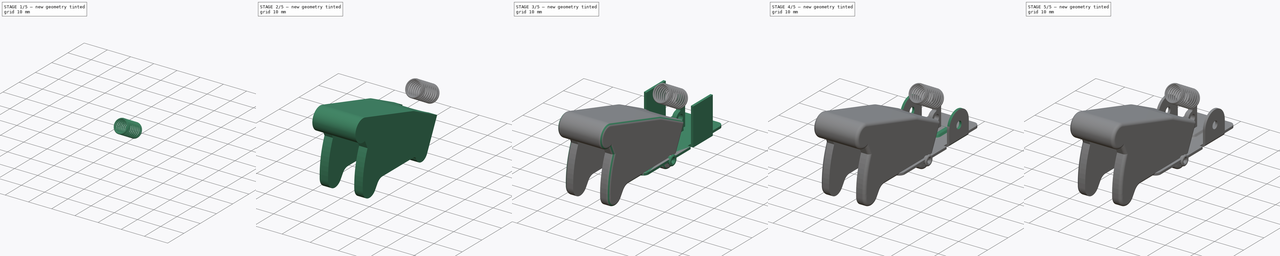
[diagram: build sequence overview — one tinted view per stage of 5, left to right]
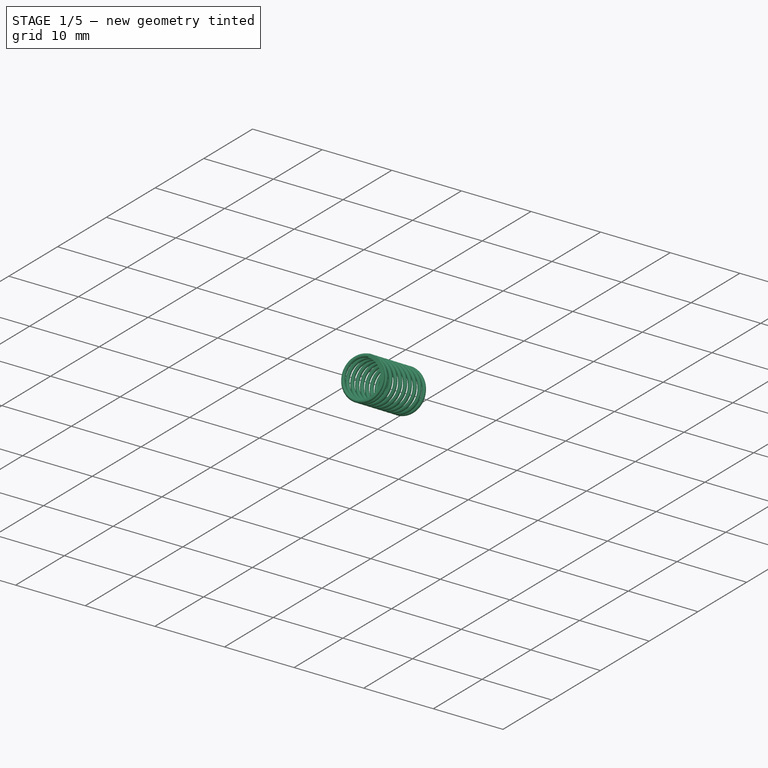
[diagram: stage 1 of 5 — iso view after this stage's code; geometry added in this stage tinted green]
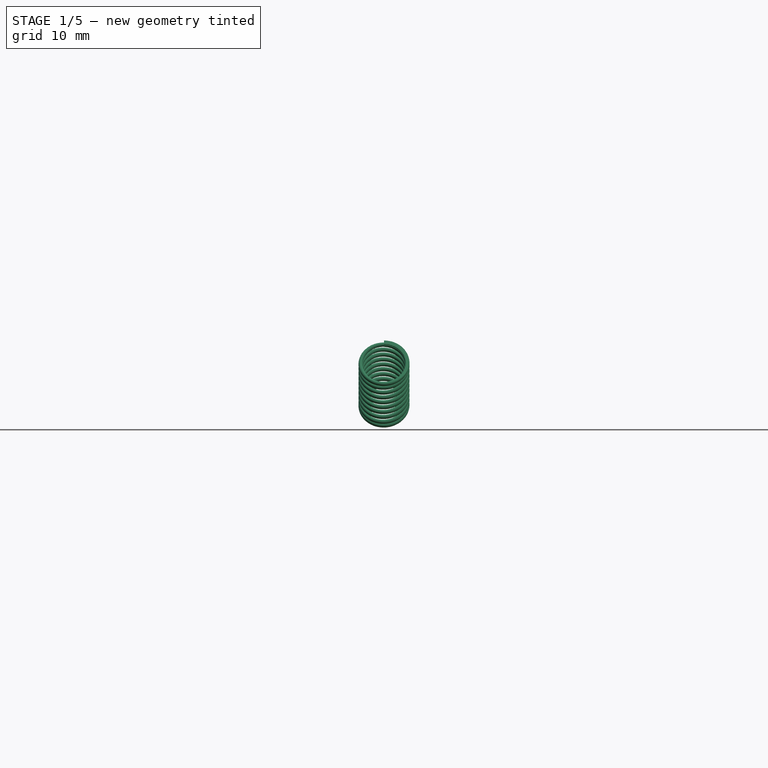
[diagram: stage 1 of 5 — front view after this stage's code; geometry added in this stage tinted green]
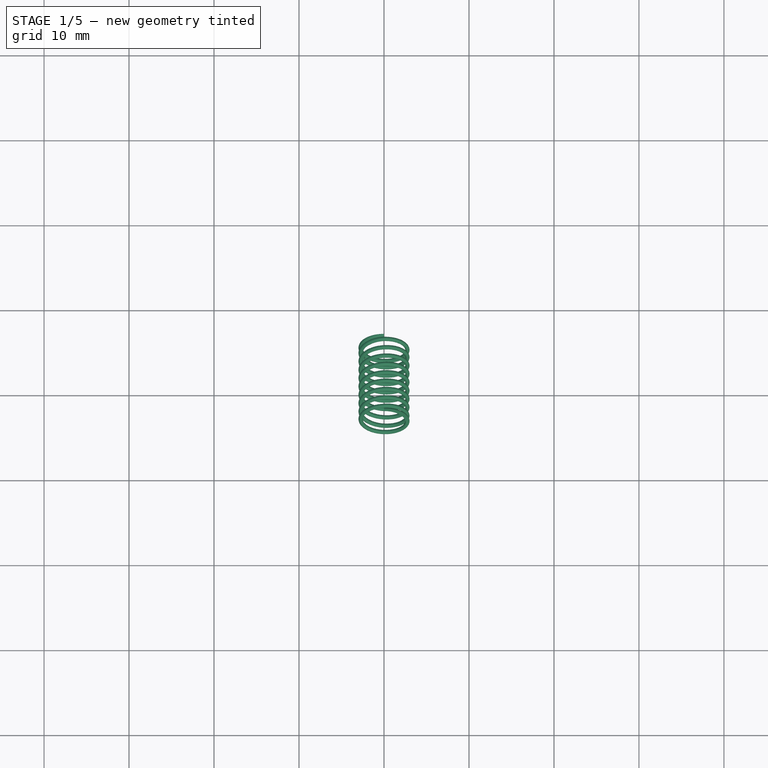
[diagram: stage 1 of 5 — top view after this stage's code; geometry added in this stage tinted green]
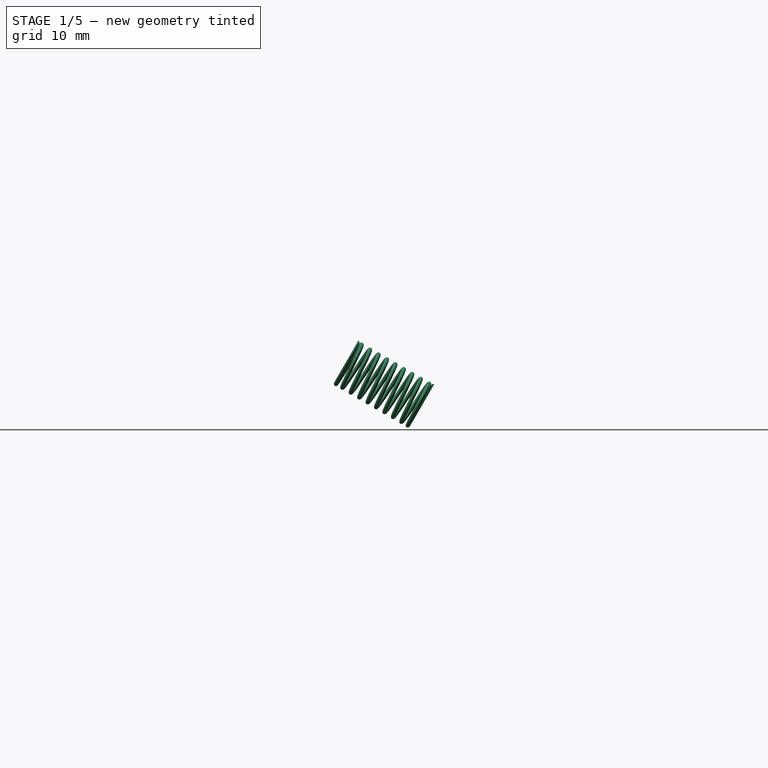
[diagram: stage 1 of 5 — right view after this stage's code; geometry added in this stage tinted green]
FCSTD DOCUMENT  (FreeCAD 0.20R29177 +426 (Git))
Label: Guard
License: All rights reserved
LicenseURL: http://en.wikipedia.org/wiki/All_rights_reserved
objects: Sketcher::SketchObject×19, PartDesign::Fillet×9, PartDesign::Body×9, PartDesign::Pad×7, PartDesign::Pocket×7, PartDesign::AdditiveHelix×3, PartDesign::Draft×2, PartDesign::Revolution×2, PartDesign::Chamfer×1, Part::MultiFuse×1
note: 91 computed .brp shape members not serialized (recipe doc carries the construction recipe); baked Part::Feature solids carry a one-line shape summary decoded from their .brp

FEATURE [PartDesign::Body] Body005
  Group = -> [Sketch013,Pad005,Sketch014,Pad006,Chamfer]
  Origin = -> Origin005
  Placement = pos=(2e-15,6.77276,16.05) rot=(0,0.965926,-0.258819;3.14159rad)
  Tip = -> Chamfer
FEATURE [Sketcher::SketchObject] Sketch015
  FullyConstrained = true
  MapMode = 5
  Placement = pos=(0,0,0) rot=(0.57735,0.57735,0.57735;2.0944rad)
  Support = -> [YZ_Plane006]
  sketch-geometry (1):
    g0: Circle CenterX=2.75 CenterY=0 CenterZ=0 NormalX=0 NormalY=0 NormalZ=1 AngleXU=0 Radius=0.25
  constraints (3):
    c: PointOnObject(g0,g-1)
    c: Diameter(g0) = 0.5
    c: DistanceX(g-1,g0) = 2.75
FEATURE [PartDesign::AdditiveHelix] AdditiveHelix
  Angle = 0
  Axis = (-2e-16,3e-16,1)
  Base = (0,0,0)
  Growth = 0
  HasBeenEdited = true
  Height = 0.55
  LeftHanded = false
  Mode = 2
  Outside = false
  Pitch = 0.55
  Placement = pos=(0,0,0) rot=(0.57735,0.57735,0.57735;2.0944rad)
  Profile = -> Sketch015
  ReferenceAxis = -> Sketch015 [V_Axis]
  Turns = 1
FEATURE [Sketcher::SketchObject] Sketch016
  FullyConstrained = true
  MapMode = 5
  Placement = pos=(0,0,0) rot=(0.57735,0.57735,0.57735;2.0944rad)
  Support = -> [YZ_Plane007]
  sketch-geometry (1):
    g0: Circle CenterX=2.75 CenterY=0 CenterZ=0 NormalX=0 NormalY=0 NormalZ=1 AngleXU=0 Radius=0.25
  constraints (3):
    c: PointOnObject(g0,g-1)
    c: Diameter(g0) = 0.5
    c: DistanceX(g-1,g0) = 2.75
FEATURE [PartDesign::AdditiveHelix] AdditiveHelix001
  Angle = 0
  Axis = (-2e-16,3e-16,1)
  Base = (0,0,0)
  Growth = 0
  HasBeenEdited = true
  Height = 9.175
  LeftHanded = false
  Mode = 2
  Outside = false
  Pitch = 1.14688
  Placement = pos=(0,0,0) rot=(0.57735,0.57735,0.57735;2.0944rad)
  Profile = -> Sketch016
  ReferenceAxis = -> Sketch016 [V_Axis]
  Turns = 8
FEATURE [PartDesign::Body] Body007
  Group = -> [Sketch016,AdditiveHelix001]
  Origin = -> Origin007
  Placement = pos=(0,0,0.55) rot=(0,0,1;0rad)
  Tip = -> AdditiveHelix001
FEATURE [Sketcher::SketchObject] Sketch017
  FullyConstrained = true
  MapMode = 5
  Placement = pos=(0,0,0) rot=(0.57735,0.57735,0.57735;2.0944rad)
  Support = -> [YZ_Plane008]
  sketch-geometry (1):
    g0: Circle CenterX=2.75 CenterY=0 CenterZ=0 NormalX=0 NormalY=0 NormalZ=1 AngleXU=0 Radius=0.25
  constraints (3):
    c: PointOnObject(g0,g-1)
    c: Diameter(g0) = 0.5
    c: DistanceX(g-1,g0) = 2.75
FEATURE [PartDesign::AdditiveHelix] AdditiveHelix002
  Angle = 0
  Axis = (-2e-16,3e-16,1)
  Base = (0,0,0)
  Growth = 0
  HasBeenEdited = true
  Height = 0.55
  LeftHanded = false
  Mode = 2
  Outside = false
  Pitch = 0.55
  Placement = pos=(0,0,0) rot=(0.57735,0.57735,0.57735;2.0944rad)
  Profile = -> Sketch017
  ReferenceAxis = -> Sketch017 [V_Axis]
  Turns = 1
FEATURE [Sketcher::SketchObject] Sketch018
  AttachmentOffset = pos=(0,0,0.55) rot=(0,0,1;0rad)
  FullyConstrained = false
  MapMode = 5
  Placement = pos=(0,0,0.55) rot=(0,0,1;0rad)
  Support = -> [XY_Plane008]
  sketch-geometry (1):
    g0: Circle CenterX=0 CenterY=0 CenterZ=0 NormalX=0 NormalY=0 NormalZ=1 AngleXU=0 Radius=3.83666
  constraints (1):
    c: Coincident(g0,g-1)
FEATURE [PartDesign::Pocket] Pocket005
  BaseFeature = -> AdditiveHelix002
  Direction = (0,0,-1)
  Length = 5
  Length2 = 5
  Placement = pos=(0,0,0) rot=(0.57735,0.57735,0.57735;2.0944rad)
  Profile = -> Sketch018
  ReferenceAxis = -> Sketch018 [N_Axis]
  Reversed = true
  Type = 0
FEATURE [PartDesign::Body] Body008
  Group = -> [Sketch017,AdditiveHelix002,Sketch018,Pocket005]
  Origin = -> Origin008
  Placement = pos=(0,0,9.75) rot=(0,0,1;0rad)
  Tip = -> Pocket005
FEATURE [Sketcher::SketchObject] Sketch019
  FullyConstrained = false
  MapMode = 5
  Support = -> [XY_Plane006]
  sketch-geometry (1):
    g0: Circle CenterX=0 CenterY=0 CenterZ=0 NormalX=0 NormalY=0 NormalZ=1 AngleXU=0 Radius=3.82613
  constraints (1):
    c: Coincident(g0,g-1)
FEATURE [PartDesign::Pocket] Pocket006
  BaseFeature = -> AdditiveHelix
  Direction = (0,0,-1)
  Length = 5
  Length2 = 5
  Placement = pos=(0,0,0) rot=(0.57735,0.57735,0.57735;2.0944rad)
  Profile = -> Sketch019
  ReferenceAxis = -> Sketch019 [N_Axis]
  Type = 0
FEATURE [PartDesign::Body] Body006
  Group = -> [Sketch015,AdditiveHelix,Sketch019,Pocket006]
  Origin = -> Origin006
  Tip = -> Pocket006
FEATURE [Part::MultiFuse] Fusion
  Placement = pos=(1.8e-15,15.6928,10.9) rot=(1,0,0;1.0472rad)
  Shapes = -> [Body006,Body007,Body008]
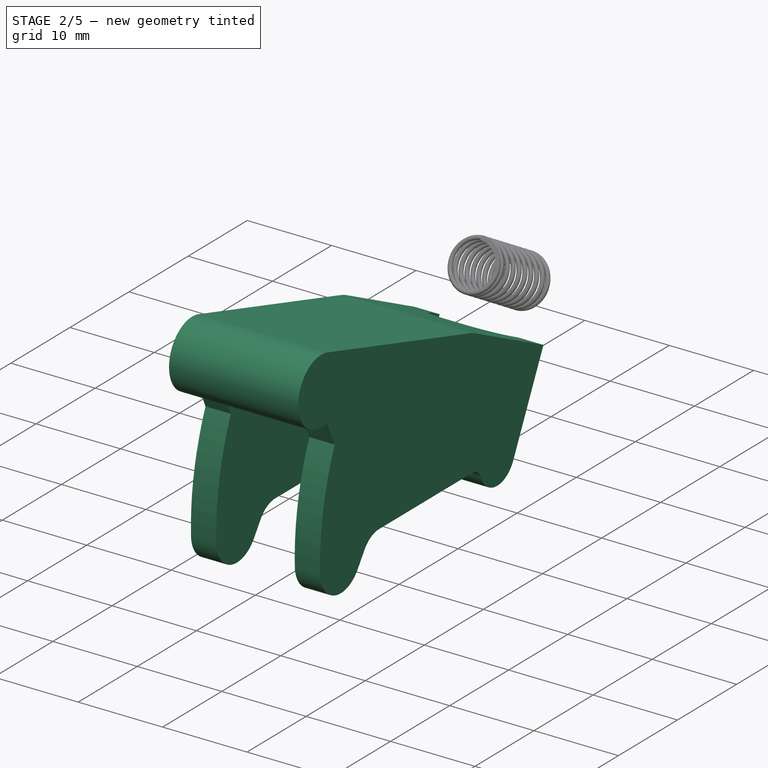
[diagram: stage 2 of 5 — iso view after this stage's code; geometry added in this stage tinted green]
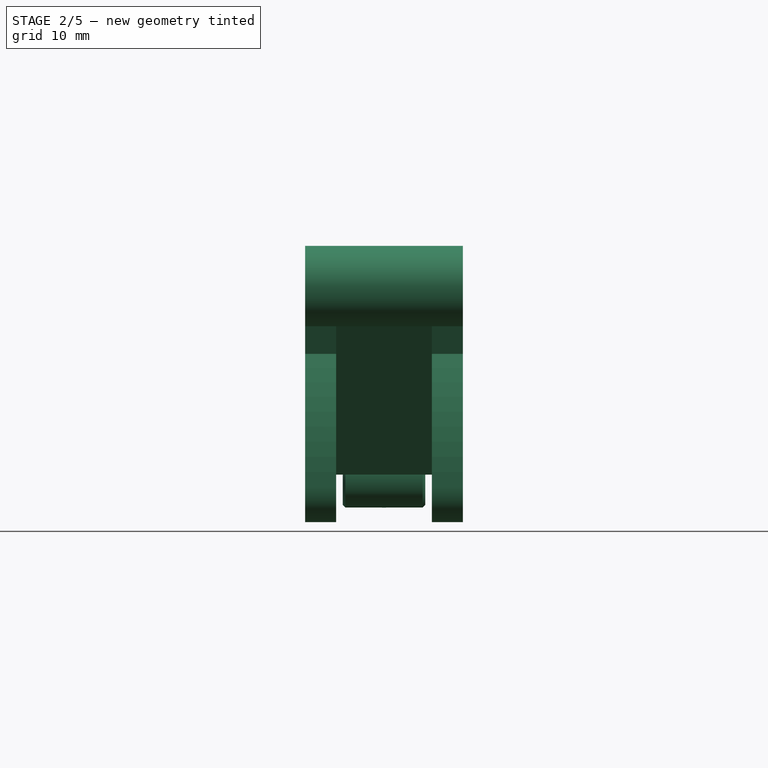
[diagram: stage 2 of 5 — front view after this stage's code; geometry added in this stage tinted green]
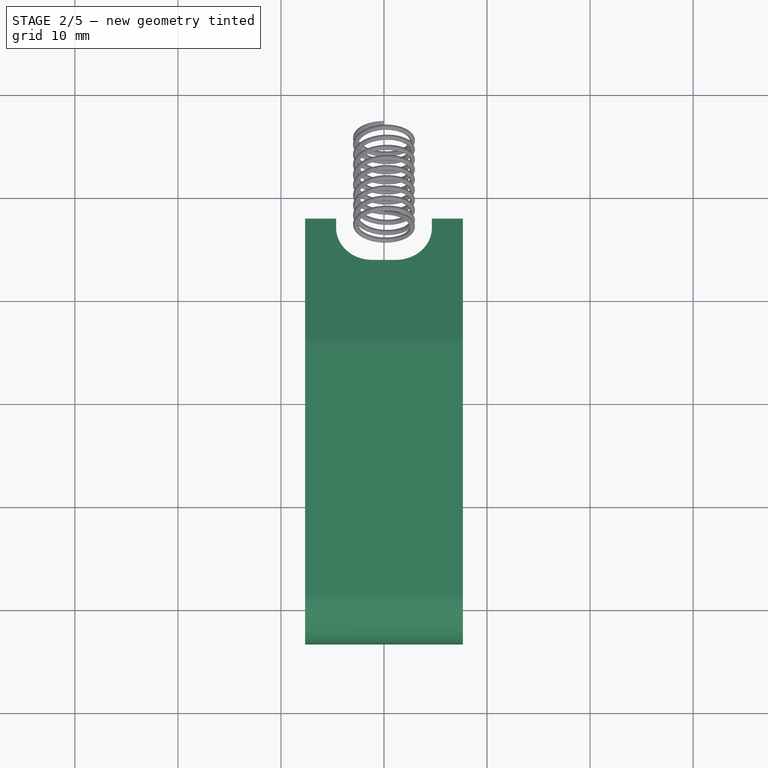
[diagram: stage 2 of 5 — top view after this stage's code; geometry added in this stage tinted green]
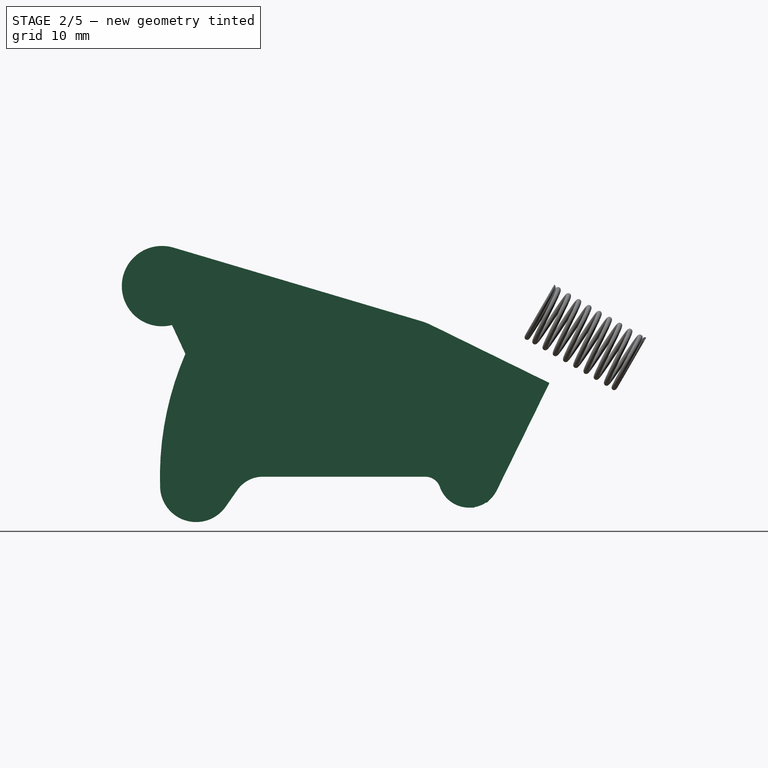
[diagram: stage 2 of 5 — right view after this stage's code; geometry added in this stage tinted green]
FEATURE [PartDesign::Body] Body002
  Group = -> [Sketch008,Revolution]
  Origin = -> Origin002
  Placement = pos=(0,15.2,5.2) rot=(0,0,1;0rad)
  Tip = -> Revolution
FEATURE [Sketcher::SketchObject] Sketch009
  FullyConstrained = true
  MapMode = 5
  Placement = pos=(0,0,0) rot=(0.57735,0.57735,0.57735;2.0944rad)
  Support = -> [YZ_Plane003]
  sketch-geometry (16):
    g0: ArcOfCircle CenterX=0 CenterY=0 CenterZ=0 NormalX=0 NormalY=0 NormalZ=1 AngleXU=0 Radius=3 StartAngle=3.48143 EndAngle=5.82755
    g1: ArcOfCircle CenterX=0 CenterY=0 CenterZ=0 NormalX=0 NormalY=0 NormalZ=1 AngleXU=0 Radius=30 StartAngle=2.73288 EndAngle=3.17556
    g2: LineSegment StartX=2.69395 StartY=-1.32009 StartZ=0 EndX=7.8 EndY=9.1 EndZ=0
    g3: LineSegment StartX=7.8 StartY=9.1 StartZ=0 EndX=-3.7 EndY=14.7352 EndZ=0
    g4: LineSegment StartX=-4.63315 StartY=15.0994 StartZ=0 EndX=-28.6904 EndY=22.2388 EndZ=0
    g5: ArcOfCircle CenterX=-29.8 CenterY=18.5 CenterZ=0 NormalX=0 NormalY=0 NormalZ=1 AngleXU=0 Radius=3.9 StartAngle=1.28231 EndAngle=4.96401
    g6: LineSegment StartX=-4.24264 StartY=0 StartZ=0 EndX=-20.0201 EndY=0 EndZ=0
    g7: ArcOfCircle CenterX=-26.4847 CenterY=-0.9 CenterZ=0 NormalX=0 NormalY=0 NormalZ=1 AngleXU=0 Radius=3.5 StartAngle=3.17556 EndAngle=5.67232
    g8: LineSegment StartX=-23.6177 StartY=-2.90752 StartZ=0 EndX=-22.4776 EndY=-1.27927 EndZ=0
    g9: LineSegment StartX=-27.529 StartY=11.9228 StartZ=0 EndX=-28.829 EndY=14.7228 EndZ=0
    g10: LineSegment StartX=-26.4847 StartY=-0.9 StartZ=0 EndX=-26.4847 EndY=-4.4 EndZ=0
    g11: ArcOfCircle CenterX=-20.0201 CenterY=-3 CenterZ=0 NormalX=0 NormalY=0 NormalZ=1 AngleXU=0 Radius=3 StartAngle=1.5708 EndAngle=2.53073
    g12: ArcOfCircle CenterX=-4.24264 CenterY=-1.5 CenterZ=0 NormalX=0 NormalY=0 NormalZ=1 AngleXU=0 Radius=1.5 StartAngle=0.339837 EndAngle=1.5708
    g13: ArcOfCircle CenterX=-6.34018 CenterY=9.34733 CenterZ=0 NormalX=0 NormalY=0 NormalZ=1 AngleXU=0 Radius=6 StartAngle=1.11516 EndAngle=1.28231
    g14: LineSegment StartX=-29.8 StartY=18.5 StartZ=0 EndX=-29.8 EndY=22.4 EndZ=0
    g15: LineSegment StartX=-29.8 StartY=18.5 StartZ=0 EndX=-33.7 EndY=18.5 EndZ=0
  constraints (43):
    c: Coincident(g0,g-1)
    c: Coincident(g1,g0)
    c: Coincident(g2,g3)
    c: Tangent(g5,g4) = -1.5708
    c: Horizontal(g6)
    c: Tangent(g1,g7) = -1.5708
    c: Tangent(g7,g8) = -1.5708
    c: Tangent(g0,g2) = -1.5708
    c: Coincident(g5,g9)
    c: Coincident(g1,g9)
    c: Coincident(g10,g7)
    c: PointOnObject(g10,g7)
    c: Vertical(g10)
    c: DistanceY(g10,g0) = 4.4
    c: Tangent(g6,g11) = -1.5708
    c: Tangent(g8,g11) = 1.5708
    c: Tangent(g0,g12) = 1.5708
    c: Tangent(g6,g12) = -1.5708
    c: Tangent(g3,g13) = -1.5708
    c: Tangent(g4,g13) = -1.5708
    c: Perpendicular(g2,g3)
    c: Radius(g0) = 3
    c: DistanceY(g-1,g2) = 9.1
    c: DistanceX(g0,g2) = 7.8
    c: PointOnObject(g6,g-1)
    c: Radius(g12) = 1.5
    c: Radius(g1) = 30
    c: Radius(g7) = 3.5
    c: Angle(g8,g-1) = 2.18166
    c: Radius(g11) = 3
    c: Coincident(g14,g5)
    c: PointOnObject(g14,g5)
    c: Vertical(g14)
    c: DistanceY(g-1,g14) = 22.4
    c: Diameter(g5) = 7.8
    c: Coincident(g15,g5)
    c: PointOnObject(g15,g5)
    c: Horizontal(g15)
    c: DistanceX(g15,g2) = 41.5
    c: DistanceX(g3,g2) = 11.5
    c: Radius(g13) = 6
    c: DistanceY(g9,g9) = 2.8
    c: DistanceX(g9,g9) = 1.3
FEATURE [PartDesign::Pad] Pad004
  Direction = (1,-2e-16,3e-16)
  Length = 15.3
  Length2 = 10
  Midplane = true
  Placement = pos=(0,0,0) rot=(0.57735,0.57735,0.57735;2.0944rad)
  Profile = -> Sketch009
  ReferenceAxis = -> Sketch009 [N_Axis]
  Type = 0
FEATURE [Sketcher::SketchObject] Sketch010
  ExternalGeometry = -> [Pad004]
  FullyConstrained = true
  MapMode = 5
  Placement = pos=(0,0,0) rot=(0.57735,0.57735,0.57735;2.0944rad)
  Support = -> [YZ_Plane003]
  sketch-geometry (14):
    g0: LineSegment StartX=6.91994 StartY=7.30403 StartZ=0 EndX=-5.80604 EndY=13.54 EndZ=0
    g1: LineSegment StartX=-24.6419 StartY=18.9511 StartZ=0 EndX=-20 EndY=17.5736 EndZ=0
    g2: LineSegment StartX=-11.5882 StartY=7.09186 StartZ=0 EndX=-7.73266 EndY=1.00241 EndZ=0
    g3: ArcOfCircle CenterX=-29.8 CenterY=18.5 CenterZ=0 NormalX=0 NormalY=0 NormalZ=1 AngleXU=0 Radius=3.9 StartAngle=4.96401 EndAngle=6.17942
    g4: LineSegment StartX=-9 StartY=0.2 StartZ=0 EndX=-20 EndY=17.5736 EndZ=0
    g5: LineSegment StartX=-9 StartY=0.2 StartZ=0 EndX=-7.73266 EndY=1.00241 EndZ=0
    g6: LineSegment StartX=-20 StartY=17.5736 StartZ=0 EndX=-19.431 EndY=19.4909 EndZ=0
    g7: LineSegment StartX=6.91994 StartY=7.30403 StartZ=0 EndX=7.8 EndY=9.1 EndZ=0
    g8: ArcOfCircle CenterX=-7.78617 CenterY=9.49909 CenterZ=0 NormalX=0 NormalY=0 NormalZ=1 AngleXU=0 Radius=4.5 StartAngle=1.11516 EndAngle=3.70603
    g9: ArcOfCircle CenterX=-24.9264 CenterY=17.9925 CenterZ=0 NormalX=0 NormalY=0 NormalZ=1 AngleXU=0 Radius=1 StartAngle=1.28231 EndAngle=3.03782
    g10: LineSegment StartX=-28.829 StartY=14.7228 StartZ=0 EndX=-34.6401 EndY=13.229 EndZ=0
    g11: LineSegment StartX=-34.6401 StartY=13.229 StartZ=0 EndX=-31.0801 EndY=-4.69597 EndZ=0
    g12: LineSegment StartX=-31.0801 StartY=-4.69597 StartZ=0 EndX=6.91994 EndY=-4.69597 EndZ=0
    g13: LineSegment StartX=6.91994 StartY=-4.69597 StartZ=0 EndX=6.91994 EndY=7.30403 EndZ=0
  constraints (37):
    c: PointOnObject(g0,g-5)
    c: Parallel(g1,g-4)
    c: Coincident(g3,g-6)
    c: Coincident(g3,g-6)
    c: Parallel(g-3,g0)
    c: Parallel(g2,g4)
    c: Coincident(g1,g4)
    c: Coincident(g5,g4)
    c: Coincident(g5,g2)
    c: Perpendicular(g4,g5)
    c: Distance(g5) = 1.5
    c: Distance(g-5,g0) = 2
    c: DistanceX(g4,g-1) = 9
    c: DistanceY(g-1,g4) = 0.2
    c: Coincident(g6,g1)
    c: PointOnObject(g6,g-4)
    c: Perpendicular(g-4,g6)
    c: Coincident(g7,g0)
    c: Coincident(g7,g-5)
    c: Equal(g7,g6)
    c: Tangent(g8,g2) = -1.5708
    c: Tangent(g0,g8) = -1.5708
    c: Tangent(g1,g9) = 1.5708
    c: Tangent(g3,g9) = 1.5708
    c: Radius(g9) = 1
    c: Radius(g8) = 4.5
    c: Tangent(g3,g10) = 1.5708
    c: Coincident(g10,g11)
    c: Coincident(g11,g12)
    c: Horizontal(g12)
    c: Coincident(g12,g13)
    c: Coincident(g13,g0)
    c: Vertical(g13)
    c: Distance(g10) = 6
    c: DistanceY(g13,g13) = 12
    c: DistanceX(g12,g12) = 38
    c: DistanceX(g3,g1) = 9.8
FEATURE [PartDesign::Pocket] Pocket003
  BaseFeature = -> Pad004
  Direction = (-1,2e-16,-3e-16)
  Length = 9.3
  Length2 = 5
  Midplane = true
  Placement = pos=(0,0,0) rot=(0.57735,0.57735,0.57735;2.0944rad)
  Profile = -> Sketch010
  ReferenceAxis = -> Sketch010 [N_Axis]
  Type = 0
FEATURE [Sketcher::SketchObject] Sketch011
  ExternalGeometry = -> [Pocket003]
  FullyConstrained = true
  MapMode = 5
  Placement = pos=(-6e-16,5.10605,10.4201) rot=(-0.220302,-0.220302,-0.950229;1.62183rad)
  Support = -> [Pocket003]
  sketch-geometry (6):
    g0: LineSegment StartX=-3 StartY=4.65 StartZ=0 EndX=-2 EndY=4.65 EndZ=0
    g1: LineSegment StartX=1.5 StartY=1.15 StartZ=0 EndX=1.5 EndY=-1.15 EndZ=0
    g2: LineSegment StartX=-2 StartY=-4.65 StartZ=0 EndX=-3 EndY=-4.65 EndZ=0
    g3: LineSegment StartX=-3 StartY=-4.65 StartZ=0 EndX=-3 EndY=4.65 EndZ=0
    g4: ArcOfCircle CenterX=-2 CenterY=1.15 CenterZ=0 NormalX=0 NormalY=0 NormalZ=1 AngleXU=0 Radius=3.5 StartAngle=0 EndAngle=1.5708
    g5: ArcOfCircle CenterX=-2 CenterY=-1.15 CenterZ=0 NormalX=0 NormalY=0 NormalZ=1 AngleXU=0 Radius=3.5 StartAngle=4.71239 EndAngle=6.28319
  constraints (14):
    c: Coincident(g2,g3)
    c: Coincident(g3,g0)
    c: Horizontal(g0)
    c: Horizontal(g2)
    c: Vertical(g1)
    c: Coincident(g0,g-3)
    c: Coincident(g2,g-4)
    c: Tangent(g0,g4) = 1.5708
    c: Tangent(g1,g4) = 1.5708
    c: Tangent(g2,g5) = 1.5708
    c: Tangent(g1,g5) = 1.5708
    c: Equal(g4,g5)
    c: DistanceX(g0,g1) = 4.5
    c: DistanceX(g0,g0) = 1
FEATURE [PartDesign::Pocket] Pocket004
  BaseFeature = -> Pocket003
  Direction = (5e-16,-0.44003,-0.897983)
  Length = 2
  Length2 = 5
  Placement = pos=(0,0,0) rot=(0.57735,0.57735,0.57735;2.0944rad)
  Profile = -> Sketch011
  ReferenceAxis = -> Sketch011 [N_Axis]
  Refine = true
  Type = 0
FEATURE [PartDesign::Body] Body003
  Group = -> [Sketch009,Pad004,Sketch010,Pocket003,Sketch011,Pocket004,Fillet007,Fillet008]
  Origin = -> Origin003
  Placement = pos=(0,15.2,5.2) rot=(0,0,1;0rad)
  Tip = -> Fillet008
FEATURE [Sketcher::SketchObject] Sketch012
  FullyConstrained = true
  MapMode = 5
  Placement = pos=(0,0,0) rot=(0.57735,0.57735,0.57735;2.0944rad)
  Support = -> [YZ_Plane004]
  sketch-geometry (8):
    g0: ArcOfCircle CenterX=-0.658312 CenterY=0 CenterZ=0 NormalX=0 NormalY=0 NormalZ=1 AngleXU=0 Radius=2 StartAngle=0 EndAngle=0.985111
    g1: ArcOfCircle CenterX=-0.658312 CenterY=0 CenterZ=0 NormalX=0 NormalY=0 NormalZ=1 AngleXU=0 Radius=2.5 StartAngle=0 EndAngle=0.985111
    g2: LineSegment StartX=0 StartY=2.5 StartZ=0 EndX=0 EndY=3 EndZ=0
    g3: LineSegment StartX=0 StartY=3 StartZ=0 EndX=0.5 EndY=3 EndZ=0
    g4: LineSegment StartX=0.5 StartY=3 StartZ=0 EndX=0.5 EndY=2.5 EndZ=0
    g5: LineSegment StartX=1.34169 StartY=0 StartZ=0 EndX=1.84169 EndY=0 EndZ=0
    g6: ArcOfCircle CenterX=1 CenterY=2.5 CenterZ=0 NormalX=0 NormalY=0 NormalZ=1 AngleXU=0 Radius=0.5 StartAngle=3.14159 EndAngle=4.1267
    g7: ArcOfCircle CenterX=1 CenterY=2.5 CenterZ=0 NormalX=0 NormalY=0 NormalZ=1 AngleXU=0 Radius=1 StartAngle=3.14159 EndAngle=4.1267
  constraints (22):
    c: PointOnObject(g0,g-1)
    c: PointOnObject(g0,g-1)
    c: Coincident(g1,g0)
    c: PointOnObject(g1,g-1)
    c: Vertical(g2)
    c: Coincident(g3,g2)
    c: Horizontal(g3)
    c: Coincident(g4,g3)
    c: Vertical(g4)
    c: Coincident(g5,g0)
    c: Coincident(g5,g1)
    c: Tangent(g4,g6) = -1.5708
    c: Tangent(g1,g6) = 1.5708
    c: Tangent(g2,g7) = 1.5708
    c: Tangent(g0,g7) = 1.5708
    c: Coincident(g7,g6)
    c: PointOnObject(g2,g-2)
    c: DistanceY(g-1,g2) = 3
    c: DistanceX(g3,g3) = 0.5
    c: Radius(g0) = 2
    c: Radius(g6) = 0.5
    c: DistanceY(g-1,g2) = 2.5
FEATURE [PartDesign::Revolution] Revolution001
  Angle = 360
  Axis = (3e-16,1,-2e-16)
  Base = (0,0,0)
  Placement = pos=(0,0,0) rot=(0.57735,0.57735,0.57735;2.0944rad)
  Profile = -> Sketch012
  ReferenceAxis = -> Sketch012 [H_Axis]
FEATURE [PartDesign::Body] Body004
  Group = -> [Sketch012,Revolution001]
  Origin = -> Origin004
  Placement = pos=(2e-15,16.1258,10.65) rot=(0,0.258819,0.965926;3.14159rad)
  Tip = -> Revolution001
FEATURE [Sketcher::SketchObject] Sketch013
  FullyConstrained = true
  MapMode = 5
  Placement = pos=(0,0,0) rot=(0.57735,0.57735,0.57735;2.0944rad)
  Support = -> [YZ_Plane005]
  sketch-geometry (2):
    g0: ArcOfCircle CenterX=0 CenterY=0 CenterZ=0 NormalX=0 NormalY=0 NormalZ=1 AngleXU=0 Radius=3 StartAngle=1.5708 EndAngle=4.71239
    g1: LineSegment StartX=2e-16 StartY=3 StartZ=0 EndX=-6e-16 EndY=-3 EndZ=0
  constraints (6):
    c: Coincident(g0,g-1)
    c: Radius(g0) = 3
    c: PointOnObject(g0,g-2)
    c: PointOnObject(g0,g-2)
    c: Coincident(g1,g0)
    c: Coincident(g0,g1)
FEATURE [PartDesign::Pad] Pad005
  Direction = (1,-2e-16,3e-16)
  Length = 8
  Length2 = 10
  Midplane = true
  Placement = pos=(0,0,0) rot=(0.57735,0.57735,0.57735;2.0944rad)
  Profile = -> Sketch013
  ReferenceAxis = -> Sketch013 [N_Axis]
  Type = 0
FEATURE [Sketcher::SketchObject] Sketch014
  FullyConstrained = true
  MapMode = 5
  Placement = pos=(0,-2e-16,0) rot=(0.57735,0.57735,0.57735;4.18879rad)
  Support = -> [Pad005]
  sketch-geometry (1):
    g0: Circle CenterX=0 CenterY=0 CenterZ=0 NormalX=0 NormalY=0 NormalZ=1 AngleXU=0 Radius=2.5
  constraints (2):
    c: Coincident(g0,g-1)
    c: Diameter(g0) = 5
FEATURE [PartDesign::Pad] Pad006
  BaseFeature = -> Pad005
  Direction = (5e-16,1,-5e-16)
  Length = 2
  Length2 = 10
  Placement = pos=(0,0,0) rot=(0.57735,0.57735,0.57735;2.0944rad)
  Profile = -> Sketch014
  ReferenceAxis = -> Sketch014 [N_Axis]
  Type = 0
FEATURE [PartDesign::Chamfer] Chamfer
  Angle = 45
  Base = -> Pad006 [Edge9,Face3,Face4,Edge2,Edge1]
  BaseFeature = -> Pad006
  ChamferType = 0
  FlipDirection = false
  Placement = pos=(0,0,0) rot=(0.57735,0.57735,0.57735;2.0944rad)
  Size = 0.25
  Size2 = 1
  SupportTransform = false
  UseAllEdges = false
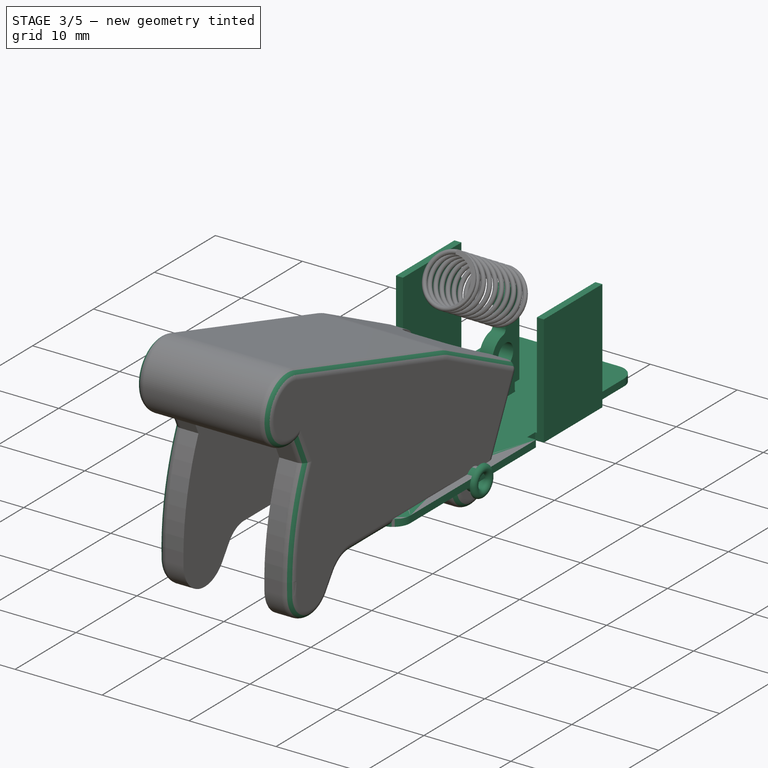
[diagram: stage 3 of 5 — iso view after this stage's code; geometry added in this stage tinted green]
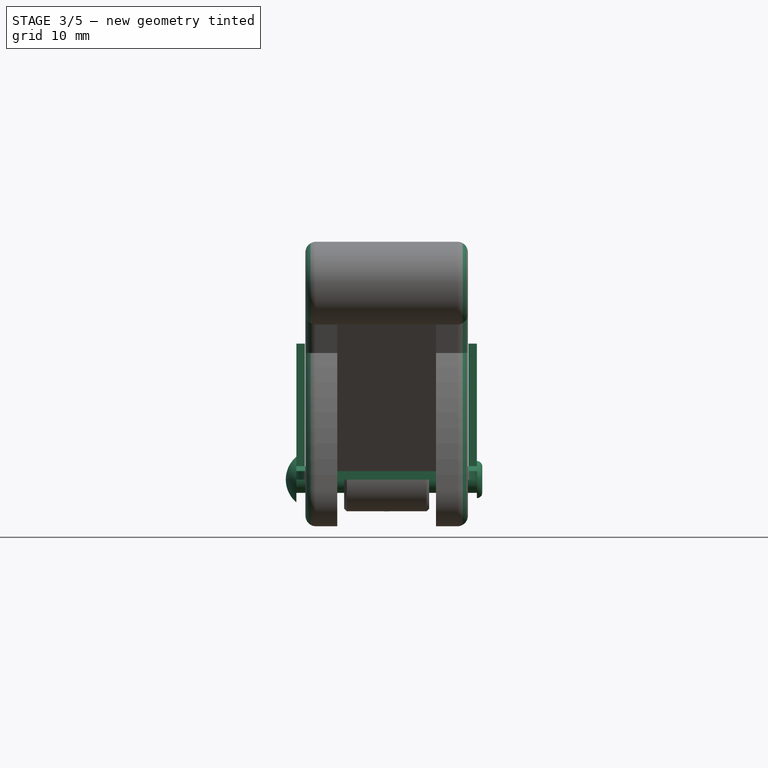
[diagram: stage 3 of 5 — front view after this stage's code; geometry added in this stage tinted green]
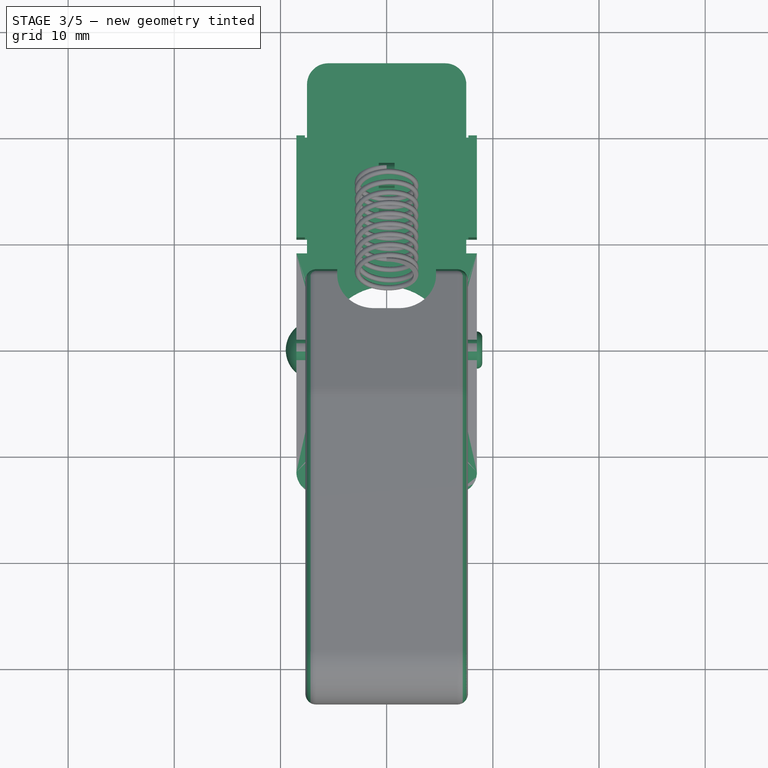
[diagram: stage 3 of 5 — top view after this stage's code; geometry added in this stage tinted green]
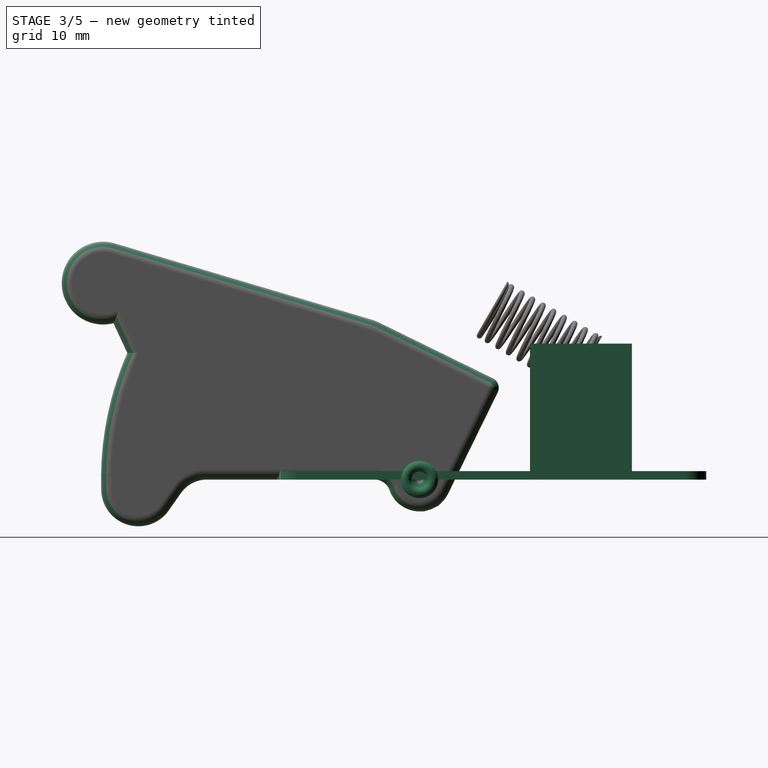
[diagram: stage 3 of 5 — right view after this stage's code; geometry added in this stage tinted green]
FEATURE [Sketcher::SketchObject] Sketch
  FullyConstrained = true
  MapMode = 5
  Support = -> [XY_Plane]
  sketch-geometry (24):
    g0: ArcOfCircle CenterX=0 CenterY=0 CenterZ=0 NormalX=0 NormalY=0 NormalZ=1 AngleXU=0 Radius=6 StartAngle=4.83772 EndAngle=10.8702
    g1: LineSegment StartX=-0.75 StartY=-5.95294 StartZ=0 EndX=-0.75 EndY=-5 EndZ=0
    g2: LineSegment StartX=-0.75 StartY=-5 StartZ=0 EndX=0.75 EndY=-5 EndZ=0
    g3: LineSegment StartX=0.75 StartY=-5 StartZ=0 EndX=0.75 EndY=-5.95294 EndZ=0
    g4: LineSegment StartX=-5.5 StartY=27 StartZ=0 EndX=5.5 EndY=27 EndZ=0
    g5: LineSegment StartX=8.5 StartY=20 StartZ=0 EndX=8.5 EndY=10.4 EndZ=0
    g6: LineSegment StartX=6.5 StartY=-13.5 StartZ=0 EndX=-6.5 EndY=-13.5 EndZ=0
    g7: LineSegment StartX=-8.5 StartY=-11.5 StartZ=0 EndX=-8.5 EndY=9.1 EndZ=0
    g8: LineSegment StartX=7.5 StartY=25 StartZ=0 EndX=7.5 EndY=20 EndZ=0
    g9: LineSegment StartX=7.5 StartY=20 StartZ=0 EndX=8.5 EndY=20 EndZ=0
    g10: LineSegment StartX=-7.5 StartY=25 StartZ=0 EndX=-7.5 EndY=20 EndZ=0
    g11: LineSegment StartX=-7.5 StartY=20 StartZ=0 EndX=-8.5 EndY=20 EndZ=0
    g12: LineSegment StartX=8.5 StartY=10.4 StartZ=0 EndX=7.5 EndY=10.4 EndZ=0
    g13: LineSegment StartX=7.5 StartY=10.4 StartZ=0 EndX=7.5 EndY=9.1 EndZ=0
    g14: LineSegment StartX=7.5 StartY=9.1 StartZ=0 EndX=8.5 EndY=9.1 EndZ=0
    g15: LineSegment StartX=-8.5 StartY=10.4 StartZ=0 EndX=-7.5 EndY=10.4 EndZ=0
    g16: LineSegment StartX=-7.5 StartY=10.4 StartZ=0 EndX=-7.5 EndY=9.1 EndZ=0
    g17: LineSegment StartX=-7.5 StartY=9.1 StartZ=0 EndX=-8.5 EndY=9.1 EndZ=0
    g18: LineSegment StartX=8.5 StartY=9.1 StartZ=0 EndX=8.5 EndY=-11.5 EndZ=0
    g19: LineSegment StartX=-8.5 StartY=10.4 StartZ=0 EndX=-8.5 EndY=20 EndZ=0
    g20: ArcOfCircle CenterX=5.5 CenterY=25 CenterZ=0 NormalX=0 NormalY=0 NormalZ=1 AngleXU=0 Radius=2 StartAngle=0 EndAngle=1.5708
    g21: ArcOfCircle CenterX=-5.5 CenterY=25 CenterZ=0 NormalX=0 NormalY=0 NormalZ=1 AngleXU=0 Radius=2 StartAngle=1.5708 EndAngle=3.14159
    g22: ArcOfCircle CenterX=-6.5 CenterY=-11.5 CenterZ=0 NormalX=0 NormalY=0 NormalZ=1 AngleXU=0 Radius=2 StartAngle=3.14159 EndAngle=4.71239
    g23: ArcOfCircle CenterX=6.5 CenterY=-11.5 CenterZ=0 NormalX=0 NormalY=0 NormalZ=1 AngleXU=0 Radius=2 StartAngle=4.71239 EndAngle=6.28319
  constraints (67):
    c: Coincident(g0,g-1)
    c: Coincident(g1,g2)
    c: Horizontal(g2)
    c: Coincident(g2,g3)
    c: Vertical(g3)
    c: Vertical(g1)
    c: Equal(g3,g1)
    c: Coincident(g0,g1)
    c: Coincident(g0,g3)
    c: DistanceX(g2,g2) = 1.5
    c: Diameter(g0) = 12
    c: DistanceY(g2,g0) = 5
    c: Horizontal(g4)
    c: Vertical(g5)
    c: Vertical(g7)
    c: Vertical(g8)
    c: Coincident(g8,g9)
    c: Vertical(g10)
    c: Coincident(g10,g11)
    c: Horizontal(g11)
    c: Coincident(g12,g13)
    c: Vertical(g13)
    c: Coincident(g13,g14)
    c: Horizontal(g14)
    c: Horizontal(g15)
    c: Coincident(g15,g16)
    c: Vertical(g16)
    c: Coincident(g16,g17)
    c: Horizontal(g17)
    c: Horizontal(g12)
    c: Horizontal(g9)
    c: Coincident(g19,g11)
    c: Coincident(g5,g9)
    c: Coincident(g5,g12)
    c: Coincident(g18,g14)
    c: Coincident(g7,g17)
    c: Coincident(g19,g15)
    c: Equal(g11,g15)
    c: Equal(g15,g9)
    c: Equal(g9,g12)
    c: Vertical(g19)
    c: Equal(g15,g17)
    c: Equal(g12,g14)
    c: Equal(g5,g19)
    c: Tangent(g4,g20) = 1.5708
    c: Tangent(g8,g20) = 1.5708
    c: Tangent(g4,g21) = 1.5708
    c: Tangent(g10,g21) = -1.5708
    c: Tangent(g7,g22) = 1.5708
    c: Tangent(g6,g22) = 1.5708
    c: Tangent(g18,g23) = 1.5708
    c: Tangent(g6,g23) = 1.5708
    c: Equal(g20,g21)
    c: Equal(g21,g23)
    c: Equal(g23,g22)
    c: Vertical(g18)
    c: Symmetric(g23,g22,g-2)
    c: DistanceY(g6,g2) = 8.5
    c: DistanceX(g7,g18) = 17
    c: Radius(g23) = 2
    c: DistanceX(g10,g8) = 15
    c: Equal(g10,g8)
    c: DistanceY(g6,g4) = 40.5
    c: DistanceY(g5,g4) = 7
    c: DistanceY(g5,g5) = 9.6
    c: DistanceY(g14,g5) = 1.3
    c: Equal(g16,g13)
FEATURE [PartDesign::Pad] Pad
  Direction = (0,0,1)
  Length = 0.8
  Length2 = 10
  Profile = -> Sketch
  ReferenceAxis = -> Sketch [N_Axis]
  Type = 0
FEATURE [Sketcher::SketchObject] Sketch001
  ExternalGeometry = -> [Pad]
  FullyConstrained = true
  MapMode = 5
  Placement = pos=(0,0,0.8) rot=(0,0,1;0rad)
  Support = -> [Pad]
  sketch-geometry (8):
    g0: LineSegment StartX=-8.5 StartY=20 StartZ=0 EndX=-7.7 EndY=20 EndZ=0
    g1: LineSegment StartX=-7.7 StartY=20 StartZ=0 EndX=-7.7 EndY=10.4 EndZ=0
    g2: LineSegment StartX=-7.7 StartY=10.4 StartZ=0 EndX=-8.5 EndY=10.4 EndZ=0
    g3: LineSegment StartX=-8.5 StartY=10.4 StartZ=0 EndX=-8.5 EndY=20 EndZ=0
    g4: LineSegment StartX=8.5 StartY=20 StartZ=0 EndX=7.7 EndY=20 EndZ=0
    g5: LineSegment StartX=7.7 StartY=20 StartZ=0 EndX=7.7 EndY=10.4 EndZ=0
    g6: LineSegment StartX=7.7 StartY=10.4 StartZ=0 EndX=8.5 EndY=10.4 EndZ=0
    g7: LineSegment StartX=8.5 StartY=10.4 StartZ=0 EndX=8.5 EndY=20 EndZ=0
  constraints (21):
    c: Coincident(g0,g1)
    c: Coincident(g1,g2)
    c: Coincident(g2,g3)
    c: Coincident(g3,g0)
    c: Horizontal(g0)
    c: Horizontal(g2)
    c: Vertical(g1)
    c: Vertical(g3)
    c: Coincident(g0,g-4)
    c: Coincident(g4,g5)
    c: Coincident(g5,g6)
    c: Coincident(g6,g7)
    c: Coincident(g7,g4)
    c: Horizontal(g4)
    c: Horizontal(g6)
    c: Vertical(g5)
    c: Vertical(g7)
    c: Coincident(g4,g-3)
    c: Symmetric(g5,g1,g-2)
    c: DistanceX(g4,g4) = 0.8
    c: PointOnObject(g-3,g6)
FEATURE [PartDesign::Pad] Pad001
  BaseFeature = -> Pad
  Direction = (0,0,1)
  Length = 12
  Length2 = 10
  Profile = -> Sketch001
  ReferenceAxis = -> Sketch001 [N_Axis]
  Refine = true
  Type = 0
FEATURE [PartDesign::Body] Body
  Group = -> [Sketch,Pad,Sketch001,Pad001,Fillet,Fillet001,Sketch002,Pocket,Sketch003,Pad002,Fillet002,Draft,Fillet003,Sketch004,Pocket001,Fillet004,Draft001,Fillet005,Fillet006,Sketch005,Pocket002]
  Origin = -> Origin
  Tip = -> Pocket002
FEATURE [Sketcher::SketchObject] Sketch006
  FullyConstrained = true
  MapMode = 5
  Placement = pos=(0,0,0) rot=(0.57735,0.57735,0.57735;2.0944rad)
  Support = -> [YZ_Plane001]
  sketch-geometry (20):
    g0: Circle CenterX=15.2 CenterY=5.2 CenterZ=0 NormalX=0 NormalY=0 NormalZ=1 AngleXU=0 Radius=1.25
    g1: LineSegment StartX=13.7 StartY=1 StartZ=0 EndX=13.7 EndY=1.8 EndZ=0
    g2: LineSegment StartX=13.7 StartY=1.8 StartZ=0 EndX=12.95 EndY=1.8 EndZ=0
    g3: LineSegment StartX=12.95 StartY=1.8 StartZ=0 EndX=12.95 EndY=5.2 EndZ=0
    g4: LineSegment StartX=13.5 StartY=0.5 StartZ=0 EndX=15 EndY=0.5 EndZ=0
    g5: LineSegment StartX=16.7 StartY=1 StartZ=0 EndX=16.7 EndY=1.8 EndZ=0
    g6: LineSegment StartX=16.7 StartY=1.8 StartZ=0 EndX=17.45 EndY=1.8 EndZ=0
    g7: LineSegment StartX=17.45 StartY=1.8 StartZ=0 EndX=17.45 EndY=10.875 EndZ=0
    g8: LineSegment StartX=15.2 StartY=10.875 StartZ=0 EndX=15.2 EndY=7.90416 EndZ=0
    g9: ArcOfCircle CenterX=15.2 CenterY=5.2 CenterZ=0 NormalX=0 NormalY=0 NormalZ=1 AngleXU=0 Radius=2.25 StartAngle=1.75363 EndAngle=3.14159
    g10: LineSegment StartX=15.2 StartY=5.2 StartZ=0 EndX=13.7 EndY=1.8 EndZ=0
    g11: LineSegment StartX=15.2 StartY=5.2 StartZ=0 EndX=16.7 EndY=1.8 EndZ=0
    g12: ArcOfCircle CenterX=16.325 CenterY=10.875 CenterZ=0 NormalX=0 NormalY=0 NormalZ=1 AngleXU=0 Radius=1.125 StartAngle=0 EndAngle=3.14159
    g13: LineSegment StartX=16.325 StartY=10.875 StartZ=0 EndX=16.325 EndY=12 EndZ=0
    g14: LineSegment StartX=13.7 StartY=1 StartZ=0 EndX=13.5 EndY=0.5 EndZ=0
    g15: LineSegment StartX=16.7 StartY=1 StartZ=0 EndX=16.9 EndY=0.5 EndZ=0
    g16: LineSegment StartX=15 StartY=0.5 StartZ=0 EndX=15.2 EndY=1 EndZ=0
    g17: LineSegment StartX=15.2 StartY=1 StartZ=0 EndX=15.4 EndY=0.5 EndZ=0
    g18: LineSegment StartX=15.4 StartY=0.5 StartZ=0 EndX=16.9 EndY=0.5 EndZ=0
    g19: ArcOfCircle CenterX=14.7 CenterY=7.90416 CenterZ=0 NormalX=0 NormalY=0 NormalZ=1 AngleXU=0 Radius=0.5 StartAngle=4.89522 EndAngle=6.28319
  constraints (55):
    c: DistanceX(g-1,g0) = 15.2
    c: DistanceY(g-1,g0) = 5.2
    c: Diameter(g0) = 2.5
    c: Vertical(g1)
    c: Coincident(g1,g2)
    c: Horizontal(g2)
    c: Coincident(g2,g3)
    c: Vertical(g3)
    c: Horizontal(g4)
    c: Vertical(g5)
    c: Coincident(g5,g6)
    c: Horizontal(g6)
    c: Coincident(g6,g7)
    c: Vertical(g7)
    c: Vertical(g8)
    c: Coincident(g9,g0)
    c: Tangent(g3,g9) = 1.5708
    c: Equal(g2,g6)
    c: Coincident(g10,g0)
    c: Coincident(g10,g1)
    c: Coincident(g11,g0)
    c: Coincident(g11,g5)
    c: Equal(g11,g10)
    c: DistanceY(g-1,g6) = 1.8
    c: DistanceY(g18,g6) = 1.3
    c: DistanceX(g2,g6) = 4.5
    c: Tangent(g8,g12) = -1.5708
    c: Tangent(g7,g12) = -1.5708
    c: Coincident(g13,g12)
    c: PointOnObject(g13,g12)
    c: Vertical(g13)
    c: DistanceY(g-1,g13) = 12
    c: Coincident(g17,g16)
    c: Coincident(g1,g14)
    c: Coincident(g5,g15)
    c: Coincident(g4,g16)
    c: Coincident(g18,g17)
    c: DistanceX(g1,g5) = 3
    c: Equal(g5,g1)
    c: DistanceY(g5,g6) = 0.8
    c: Coincident(g15,g18)
    c: Coincident(g4,g14)
    c: Equal(g4,g18)
    c: Vertical(g16,g0)
    c: Horizontal(g16,g5)
    c: Equal(g17,g16)
    c: Horizontal(g18)
    c: Horizontal(g17,g4)
    c: DistanceX(g4,g17) = 0.4
    c: Parallel(g14,g16)
    c: Parallel(g17,g15)
    c: Tangent(g9,g19) = 1.5708
    c: Tangent(g8,g19) = 1.5708
    c: Radius(g19) = 0.5
    c: Vertical(g8,g0)
FEATURE [PartDesign::Pad] Pad003
  Direction = (1,-2e-16,3e-16)
  Length = 1.5
  Length2 = 10
  Midplane = true
  Placement = pos=(0,0,0) rot=(0.57735,0.57735,0.57735;2.0944rad)
  Profile = -> Sketch006
  ReferenceAxis = -> Sketch006 [N_Axis]
  Type = 0
FEATURE [PartDesign::Body] Body001
  Group = -> [Sketch006,Pad003]
  Origin = -> Origin001
  Tip = -> Pad003
FEATURE [Sketcher::SketchObject] Sketch008
  FullyConstrained = true
  MapMode = 5
  Support = -> [XY_Plane002]
  sketch-geometry (8):
    g0: ArcOfCircle CenterX=-6.68875 CenterY=0 CenterZ=0 NormalX=0 NormalY=0 NormalZ=1 AngleXU=0 Radius=2.81125 StartAngle=2.27089 EndAngle=3.14159
    g1: LineSegment StartX=-8.5 StartY=2.15 StartZ=0 EndX=-8.5 EndY=1.25 EndZ=0
    g2: LineSegment StartX=-8.5 StartY=1.25 StartZ=0 EndX=8.5 EndY=1.25 EndZ=0
    g3: LineSegment StartX=8.5 StartY=1.25 StartZ=0 EndX=8.5 EndY=1.75 EndZ=0
    g4: LineSegment StartX=8.5 StartY=0.75 StartZ=0 EndX=8 EndY=0.75 EndZ=0
    g5: LineSegment StartX=8 StartY=0.75 StartZ=0 EndX=7.56699 EndY=0 EndZ=0
    g6: LineSegment StartX=7.56699 StartY=0 StartZ=0 EndX=-9.5 EndY=0 EndZ=0
    g7: ArcOfCircle CenterX=8.5 CenterY=1.25 CenterZ=0 NormalX=0 NormalY=0 NormalZ=1 AngleXU=0 Radius=0.5 StartAngle=4.71239 EndAngle=7.85398
  constraints (23):
    c: PointOnObject(g0,g-1)
    c: PointOnObject(g0,g-1)
    c: Vertical(g1)
    c: Coincident(g1,g2)
    c: Coincident(g2,g3)
    c: Vertical(g3)
    c: Horizontal(g4)
    c: Coincident(g4,g5)
    c: PointOnObject(g5,g-1)
    c: Coincident(g5,g6)
    c: Coincident(g6,g0)
    c: Coincident(g0,g1)
    c: Coincident(g7,g2)
    c: Coincident(g3,g7)
    c: DistanceY(g5,g2) = 1.25
    c: DistanceY(g5,g4) = 0.75
    c: Angle(g5,g4) = 2.0944
    c: DistanceX(g4,g4) = 0.5
    c: Symmetric(g2,g1,g-2)
    c: DistanceX(g0,g3) = 17
    c: DistanceY(g0,g0) = 2.15
    c: DistanceX(g0,g0) = 1
    c: Tangent(g4,g7) = 1.5708
FEATURE [PartDesign::Revolution] Revolution
  Angle = 360
  Axis = (1,0,0)
  Base = (0,0,0)
  Profile = -> Sketch008
  ReferenceAxis = -> Sketch008 [H_Axis]
FEATURE [PartDesign::Fillet] Fillet007
  Base = -> Pocket004 [Edge17,Edge23]
  BaseFeature = -> Pocket004
  Placement = pos=(0,0,0) rot=(0.57735,0.57735,0.57735;2.0944rad)
  Radius = 1
  SupportTransform = false
  UseAllEdges = false
FEATURE [PartDesign::Fillet] Fillet008
  Base = -> Fillet007 [Edge35,Edge8,Edge12,Edge68]
  BaseFeature = -> Fillet007
  Placement = pos=(0,0,0) rot=(0.57735,0.57735,0.57735;2.0944rad)
  Radius = 1
  SupportTransform = false
  UseAllEdges = false
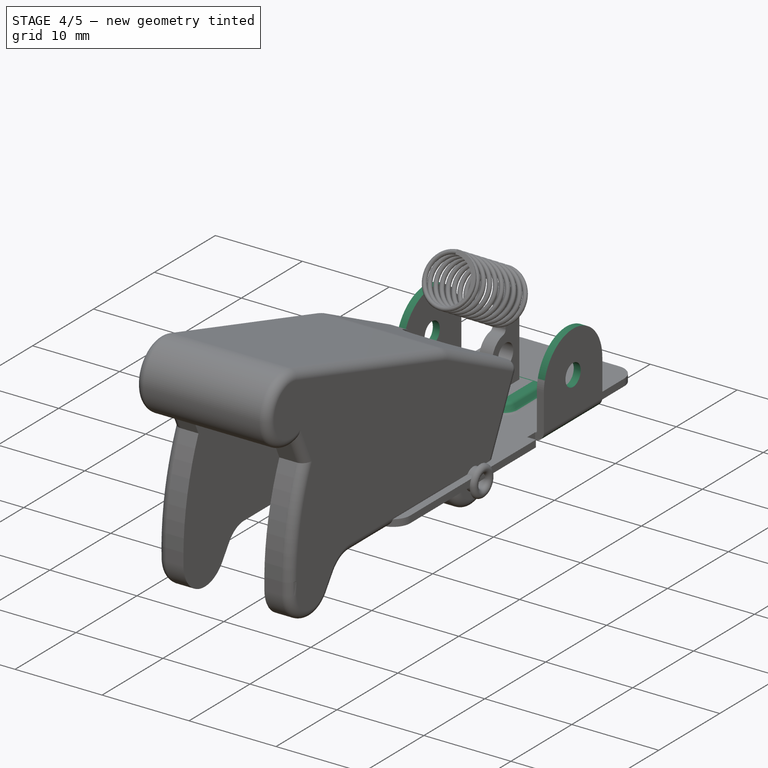
[diagram: stage 4 of 5 — iso view after this stage's code; geometry added in this stage tinted green]
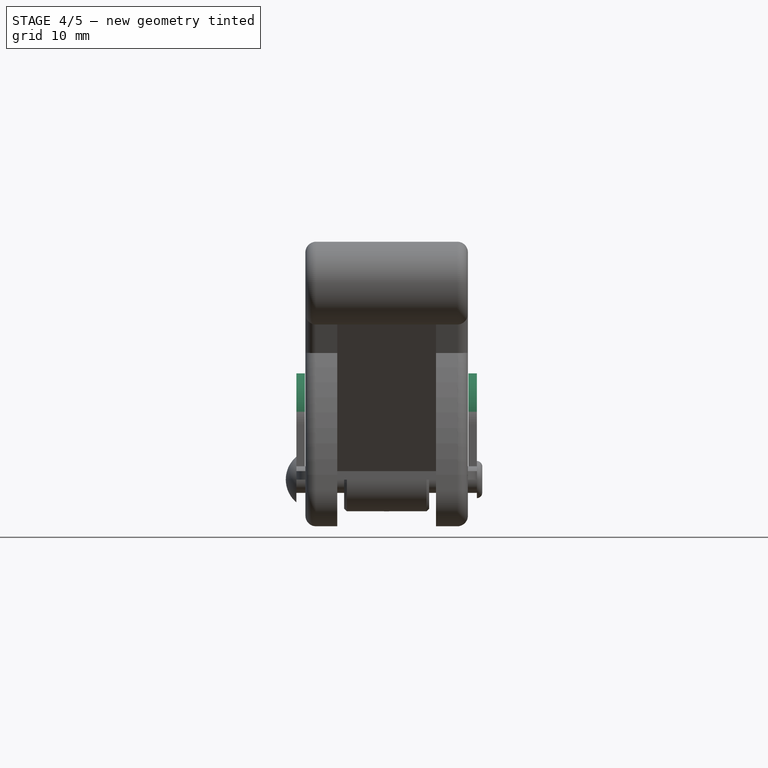
[diagram: stage 4 of 5 — front view after this stage's code; geometry added in this stage tinted green]
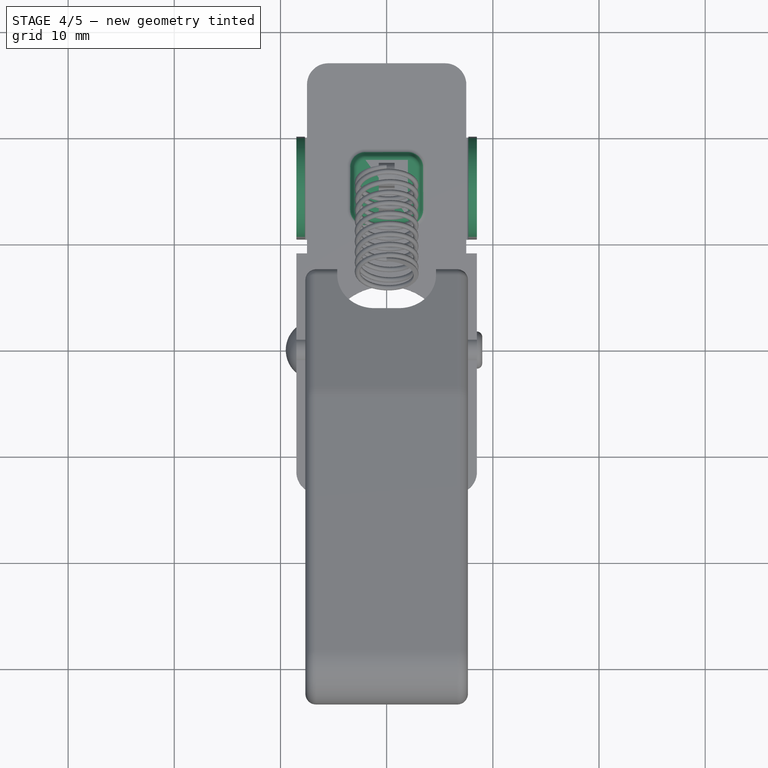
[diagram: stage 4 of 5 — top view after this stage's code; geometry added in this stage tinted green]
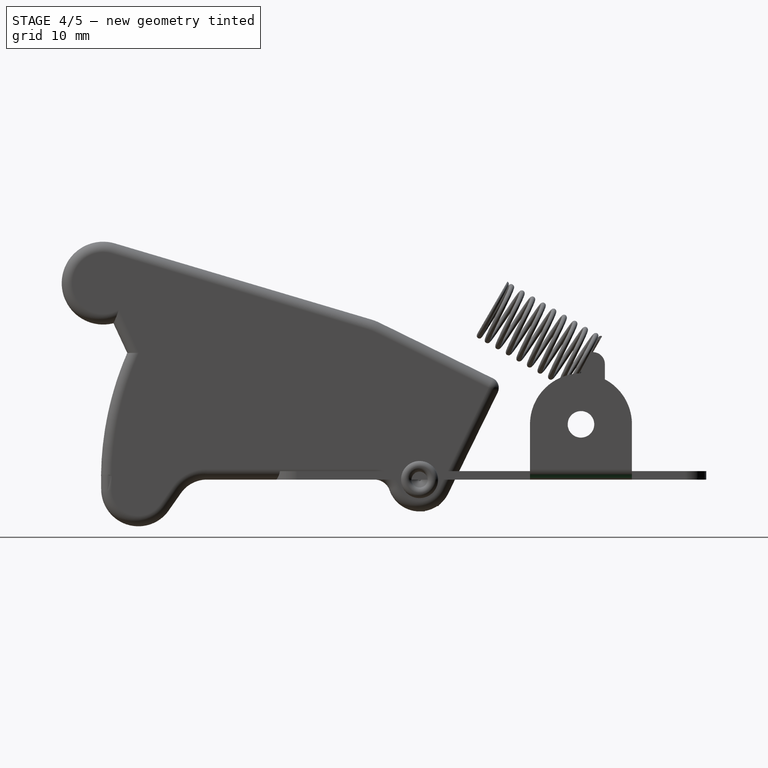
[diagram: stage 4 of 5 — right view after this stage's code; geometry added in this stage tinted green]
FEATURE [PartDesign::Fillet] Fillet
  Base = -> Pad001 [Edge46,Edge34]
  BaseFeature = -> Pad001
  Radius = 0.2
  SupportTransform = false
  UseAllEdges = false
FEATURE [PartDesign::Fillet] Fillet001
  Base = -> Fillet [Edge75,Edge77]
  BaseFeature = -> Fillet
  Radius = 1
  SupportTransform = false
  UseAllEdges = false
FEATURE [Sketcher::SketchObject] Sketch002
  ExternalGeometry = -> [Fillet001]
  FullyConstrained = false
  MapMode = 5
  Placement = pos=(8.5,0,0) rot=(0.57735,0.57735,0.57735;2.0944rad)
  Support = -> [Fillet001]
  sketch-geometry (6):
    g0: ArcOfCircle CenterX=15.2 CenterY=5.2 CenterZ=0 NormalX=0 NormalY=0 NormalZ=1 AngleXU=0 Radius=4.8 StartAngle=0 EndAngle=3.14159
    g1: LineSegment StartX=15.2 StartY=5.2 StartZ=0 EndX=15.2 EndY=10 EndZ=0
    g2: LineSegment StartX=10.4 StartY=5.2 StartZ=0 EndX=9.14195 EndY=14.2351 EndZ=0
    g3: LineSegment StartX=9.14195 StartY=14.2351 StartZ=0 EndX=21.8972 EndY=14.2351 EndZ=0
    g4: LineSegment StartX=21.8972 StartY=14.2351 StartZ=0 EndX=20 EndY=5.2 EndZ=0
    g5: Circle CenterX=15.2 CenterY=5.2 CenterZ=0 NormalX=0 NormalY=0 NormalZ=1 AngleXU=0 Radius=1.25
  constraints (15):
    c: Tangent(g0,g-3) = 1.5708
    c: Tangent(g0,g-4) = -1.5708
    c: Coincident(g1,g0)
    c: PointOnObject(g1,g0)
    c: Vertical(g1)
    c: DistanceY(g-1,g1) = 10
    c: Coincident(g2,g3)
    c: Horizontal(g3)
    c: Coincident(g3,g4)
    c: Coincident(g4,g0)
    c: Coincident(g2,g0)
    c: Coincident(g5,g0)
    c: Diameter(g5) = 2.5
    c: DistanceY(g-1,g0) = 5.2
    c: DistanceX(g-1,g1) = 15.2
FEATURE [PartDesign::Pocket] Pocket
  BaseFeature = -> Fillet001
  Direction = (-1,0,0)
  Length = 5
  Length2 = 5
  Profile = -> Sketch002
  ReferenceAxis = -> Sketch002 [N_Axis]
  Type = 1
FEATURE [Sketcher::SketchObject] Sketch003
  ExternalGeometry = -> [Pocket]
  FullyConstrained = true
  MapMode = 5
  Placement = pos=(0,0,0.8) rot=(0,0,1;0rad)
  Support = -> [Pocket]
  sketch-geometry (6):
    g0: LineSegment StartX=-3 StartY=18.2 StartZ=0 EndX=3 EndY=18.2 EndZ=0
    g1: LineSegment StartX=3 StartY=18.2 StartZ=0 EndX=3 EndY=12.2 EndZ=0
    g2: LineSegment StartX=3 StartY=12.2 StartZ=0 EndX=-3 EndY=12.2 EndZ=0
    g3: LineSegment StartX=-3 StartY=12.2 StartZ=0 EndX=-3 EndY=18.2 EndZ=0
    g4: LineSegment StartX=3 StartY=18.2 StartZ=0 EndX=7.5 EndY=20 EndZ=0
    g5: LineSegment StartX=3 StartY=12.2 StartZ=0 EndX=7.5 EndY=10.4 EndZ=0
  constraints (15):
    c: Coincident(g0,g1)
    c: Coincident(g1,g2)
    c: Coincident(g2,g3)
    c: Coincident(g3,g0)
    c: Horizontal(g2)
    c: Vertical(g1)
    c: Vertical(g3)
    c: Equal(g0,g3)
    c: Symmetric(g0,g0,g-2)
    c: Coincident(g4,g0)
    c: Coincident(g4,g-3)
    c: Coincident(g5,g1)
    c: Coincident(g5,g-3)
    c: Equal(g5,g4)
    c: DistanceX(g0,g0) = 6
FEATURE [PartDesign::Pad] Pad002
  BaseFeature = -> Pocket
  Direction = (0,0,1)
  Length = 1
  Length2 = 10
  Profile = -> Sketch003
  ReferenceAxis = -> Sketch003 [N_Axis]
  Type = 0
FEATURE [PartDesign::Fillet] Fillet002
  Base = -> Pad002 [Edge88,Edge91,Edge93,Edge89]
  BaseFeature = -> Pad002
  Radius = 1
  SupportTransform = false
  UseAllEdges = false
FEATURE [PartDesign::Draft] Draft
  Angle = 25
  Base = -> Fillet002 [Face6,Face4,Face2,Face3,Face5,Face7,Face9,Face8]
  BaseFeature = -> Fillet002
  NeutralPlane = -> Fillet002 [Face30]
  PullDirection = -> Fillet002 [Edge42]
  SupportTransform = false
FEATURE [PartDesign::Fillet] Fillet003
  Base = -> Draft [Edge39,Edge5]
  BaseFeature = -> Draft
  Radius = 0.5
  SupportTransform = false
  UseAllEdges = false
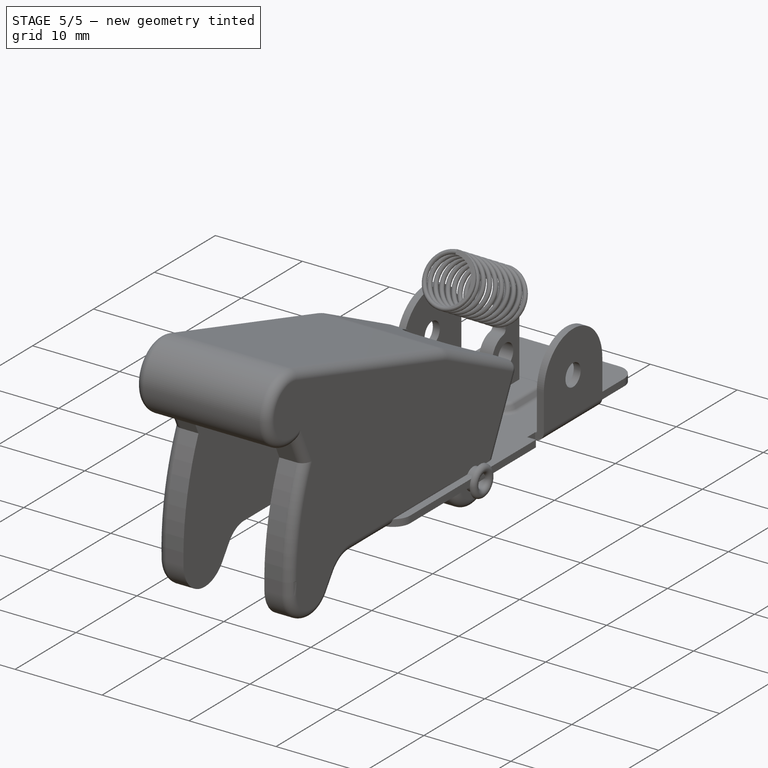
[diagram: stage 5 of 5 — iso view after this stage's code; geometry added in this stage tinted green]
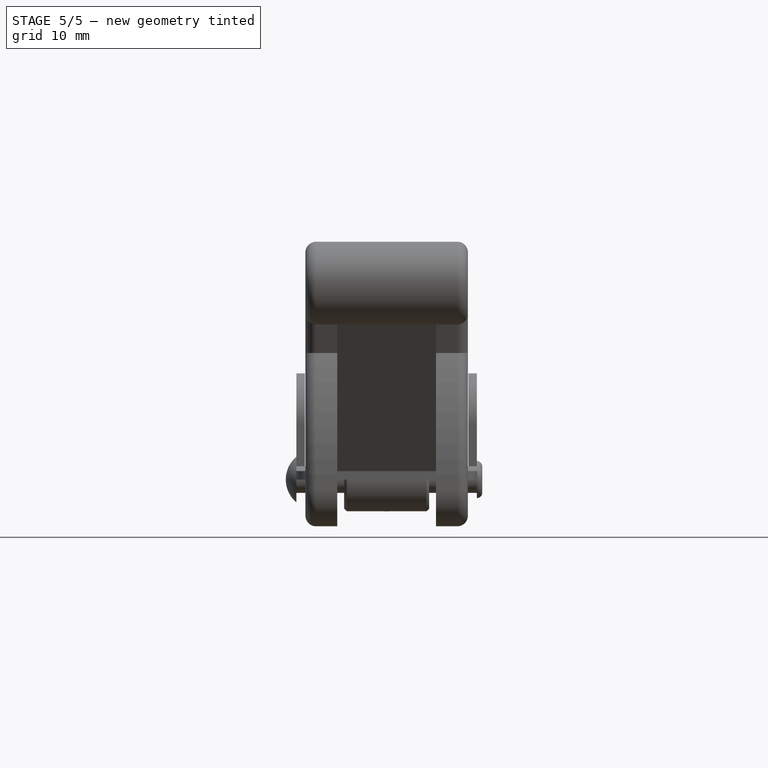
[diagram: stage 5 of 5 — front view after this stage's code; geometry added in this stage tinted green]
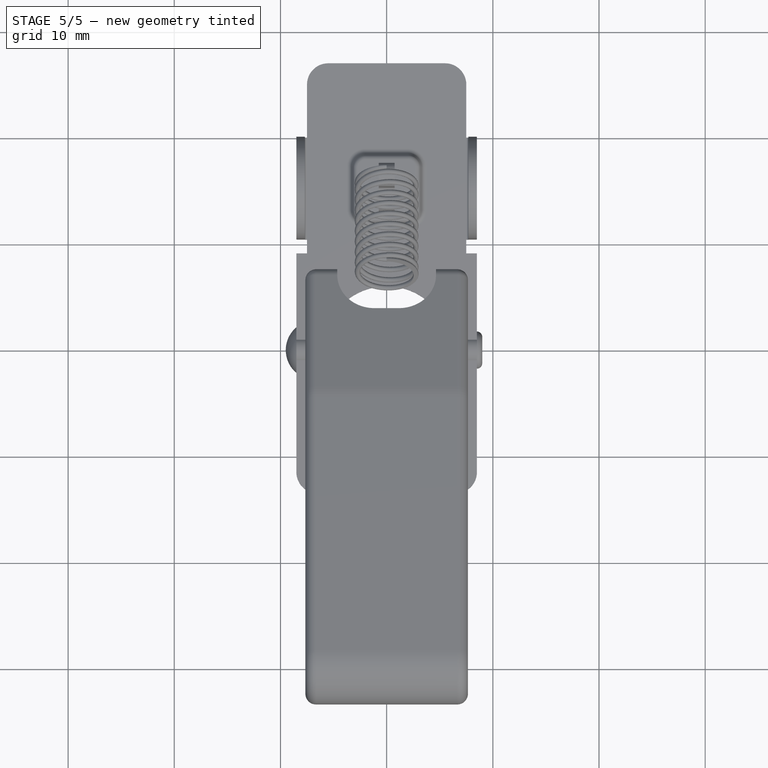
[diagram: stage 5 of 5 — top view after this stage's code; geometry added in this stage tinted green]
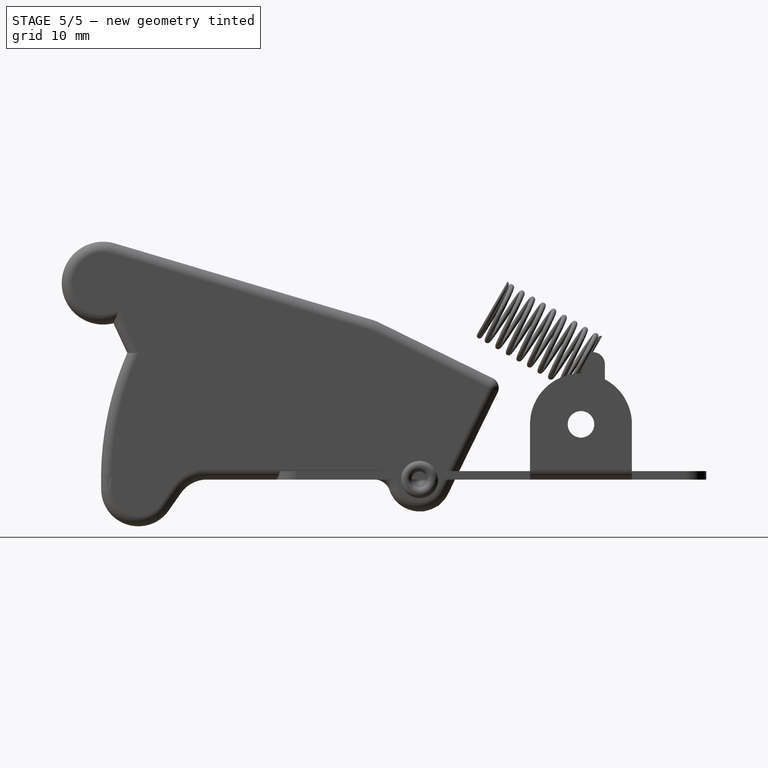
[diagram: stage 5 of 5 — right view after this stage's code; geometry added in this stage tinted green]
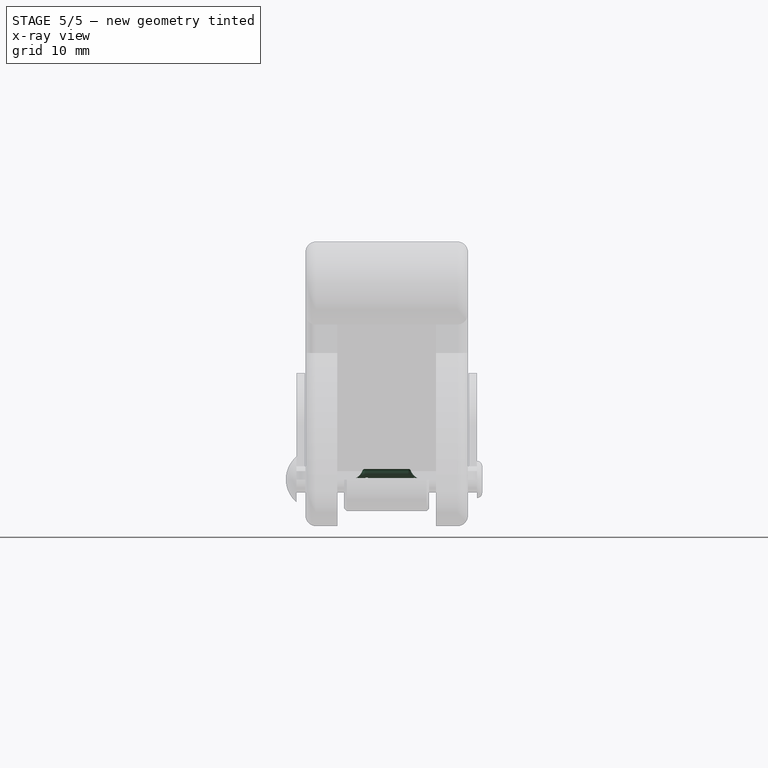
[diagram: stage 5 of 5 — x-ray composite at the front view; earlier geometry ghosted, this stage's added geometry solid]
FEATURE [Sketcher::SketchObject] Sketch004
  ExternalGeometry = -> [Fillet003]
  FullyConstrained = true
  MapMode = 5
  Placement = pos=(0,0,0) rot=(1,0,0;3.14159rad)
  Support = -> [Fillet003]
  sketch-geometry (6):
    g0: LineSegment StartX=-2.2 StartY=-13 StartZ=0 EndX=2.2 EndY=-13 EndZ=0
    g1: LineSegment StartX=2.2 StartY=-13 StartZ=0 EndX=2.2 EndY=-17.4 EndZ=0
    g2: LineSegment StartX=2.2 StartY=-17.4 StartZ=0 EndX=-2.2 EndY=-17.4 EndZ=0
    g3: LineSegment StartX=-2.2 StartY=-17.4 StartZ=0 EndX=-2.2 EndY=-13 EndZ=0
    g4: LineSegment StartX=2.2 StartY=-13 StartZ=0 EndX=7.5 EndY=-10.4 EndZ=0
    g5: LineSegment StartX=2.2 StartY=-17.4 StartZ=0 EndX=7.5 EndY=-20 EndZ=0
  constraints (15):
    c: Coincident(g0,g1)
    c: Coincident(g1,g2)
    c: Coincident(g2,g3)
    c: Coincident(g3,g0)
    c: Horizontal(g2)
    c: Vertical(g1)
    c: Vertical(g3)
    c: Equal(g0,g3)
    c: Symmetric(g0,g0,g-2)
    c: Coincident(g4,g0)
    c: Coincident(g4,g-3)
    c: Coincident(g5,g1)
    c: Coincident(g5,g-3)
    c: Equal(g4,g5)
    c: DistanceX(g0,g0) = 4.4
FEATURE [PartDesign::Pocket] Pocket001
  BaseFeature = -> Fillet003
  Direction = (0,0,1)
  Length = 1
  Length2 = 5
  Profile = -> Sketch004
  ReferenceAxis = -> Sketch004 [N_Axis]
  Type = 0
FEATURE [PartDesign::Fillet] Fillet004
  Base = -> Pocket001 [Edge153,Edge155,Edge157,Edge152]
  BaseFeature = -> Pocket001
  Radius = 0.2
  SupportTransform = false
  UseAllEdges = false
FEATURE [PartDesign::Draft] Draft001
  Angle = 25
  Base = -> Fillet004 [Face6,Face8,Face9,Face7,Face5,Face3,Face4,Face2]
  BaseFeature = -> Fillet004
  NeutralPlane = -> Fillet004 [Face30]
  PullDirection = -> Fillet004 [Edge30]
  Reversed = true
  SupportTransform = false
FEATURE [PartDesign::Fillet] Fillet005
  Base = -> Draft001 [Edge37]
  BaseFeature = -> Draft001
  Radius = 0.2
  SupportTransform = false
  UseAllEdges = false
FEATURE [PartDesign::Fillet] Fillet006
  Base = -> Fillet005 [Edge12]
  BaseFeature = -> Fillet005
  Radius = 1.3
  SupportTransform = false
  UseAllEdges = false
FEATURE [Sketcher::SketchObject] Sketch005
  ExternalGeometry = -> [Fillet006]
  FullyConstrained = true
  MapMode = 5
  Placement = pos=(0,0,1.8) rot=(0,0,1;0rad)
  Support = -> [Fillet006]
  sketch-geometry (6):
    g0: LineSegment StartX=-0.75 StartY=16.7 StartZ=0 EndX=0.75 EndY=16.7 EndZ=0
    g1: LineSegment StartX=0.75 StartY=16.7 StartZ=0 EndX=0.75 EndY=13.7 EndZ=0
    g2: LineSegment StartX=0.75 StartY=13.7 StartZ=0 EndX=-0.75 EndY=13.7 EndZ=0
    g3: LineSegment StartX=-0.75 StartY=13.7 StartZ=0 EndX=-0.75 EndY=16.7 EndZ=0
    g4: LineSegment StartX=0.75 StartY=16.7 StartZ=0 EndX=2.68146 EndY=17.2 EndZ=0
    g5: LineSegment StartX=0.75 StartY=13.7 StartZ=0 EndX=2.68146 EndY=13.2 EndZ=0
  constraints (15):
    c: Coincident(g0,g1)
    c: Coincident(g1,g2)
    c: Coincident(g2,g3)
    c: Coincident(g3,g0)
    c: Horizontal(g2)
    c: Vertical(g1)
    c: Vertical(g3)
    c: Symmetric(g0,g0,g-2)
    c: Coincident(g4,g0)
    c: Coincident(g4,g-3)
    c: Coincident(g5,g1)
    c: Coincident(g5,g-3)
    c: Equal(g5,g4)
    c: DistanceX(g0,g0) = 1.5
    c: DistanceY(g3,g3) = 3
FEATURE [PartDesign::Pocket] Pocket002
  BaseFeature = -> Fillet006
  Direction = (0,0,-1)
  Length = 5
  Length2 = 5
  Profile = -> Sketch005
  ReferenceAxis = -> Sketch005 [N_Axis]
  Type = 0
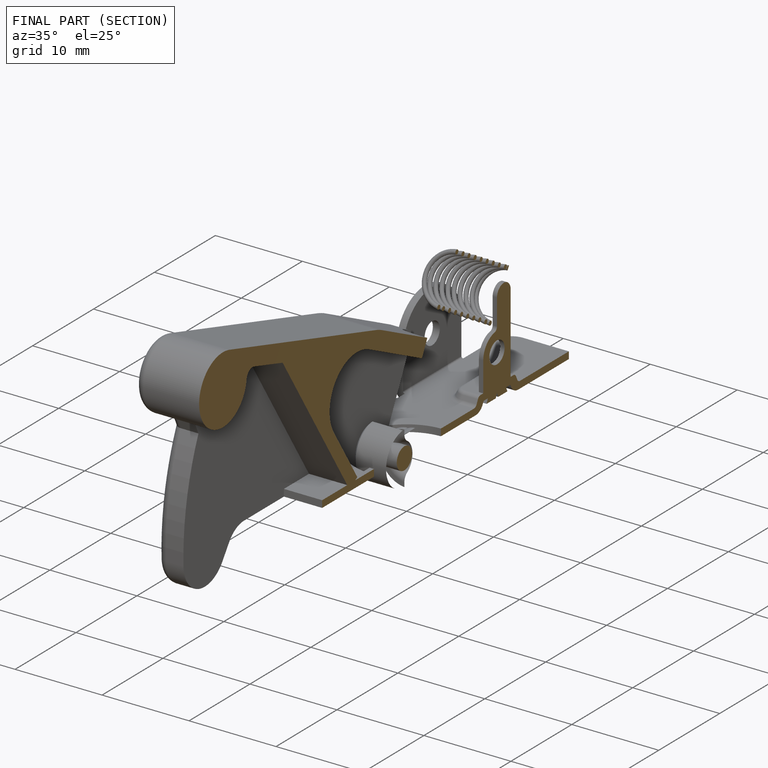
[diagram: finished part — half-section view (interior)]
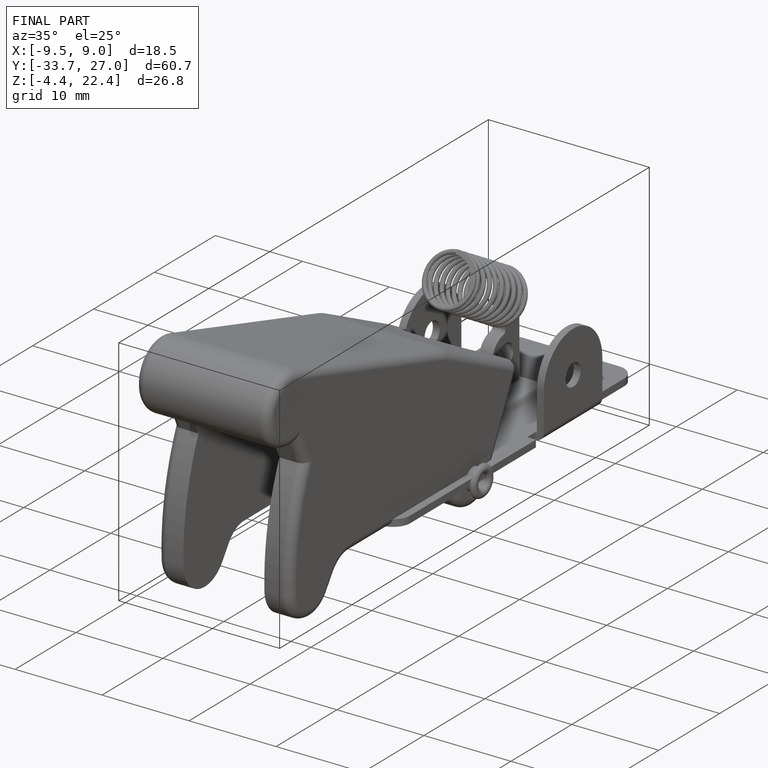
[diagram: finished part — iso view with bounding-box wireframe]
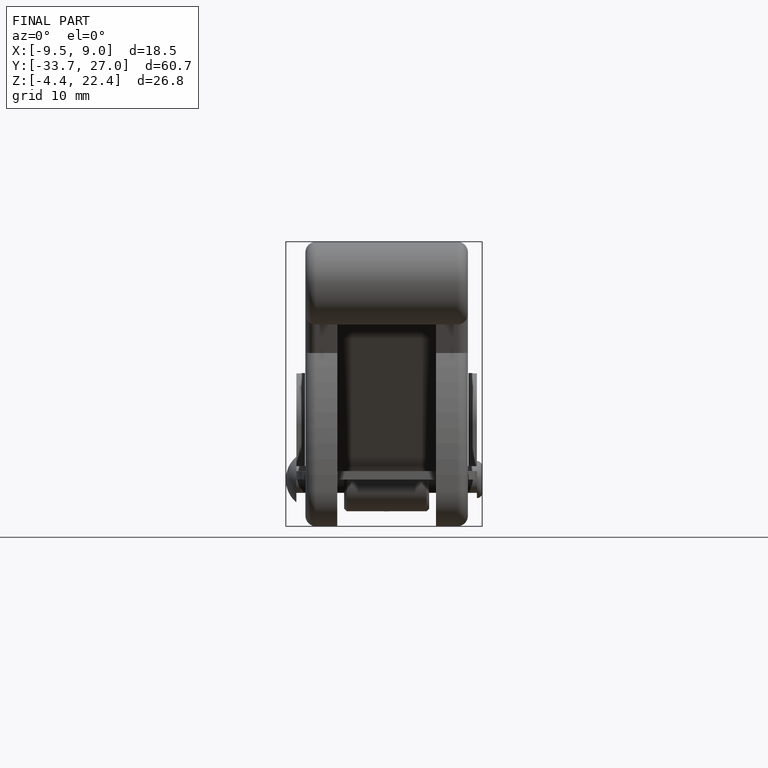
[diagram: finished part — front view with bounding-box wireframe]
